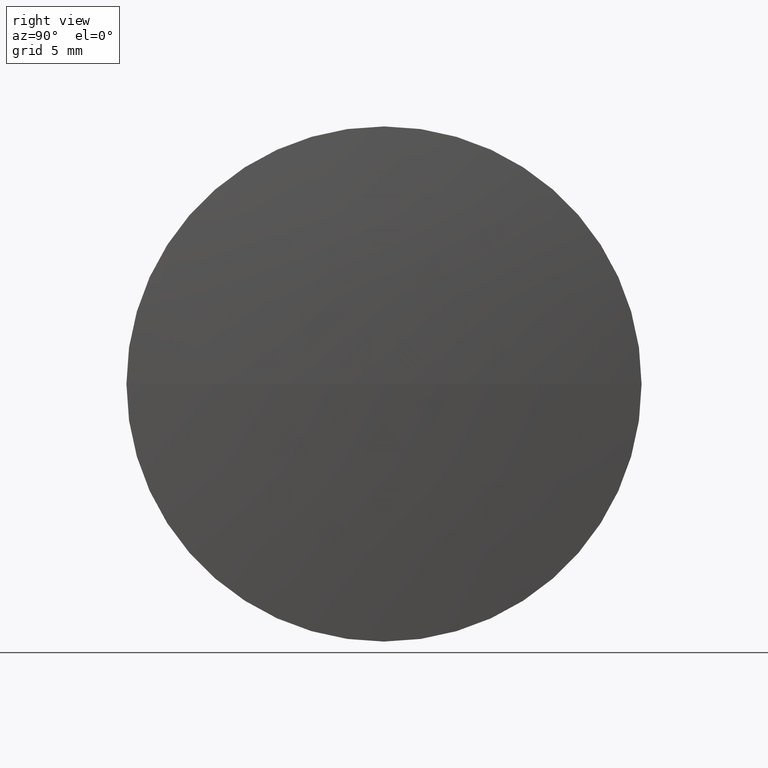
[diagram: clean part render]
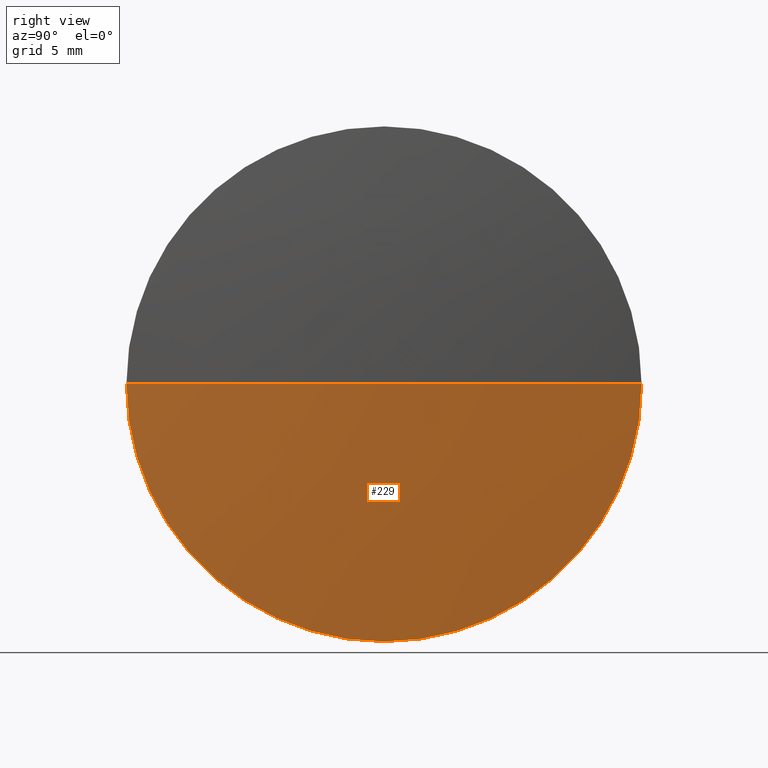
[diagram: same view with one face highlighted and labeled with its STEP entity id]
A machine part, right view. The second image highlights one B-rep face of the part: STEP entity #229.
In plain terms, the highlighted spherical surface has radius 134.671 mm.
Its self-contained STEP definition (entity closure, byte-faithful):
#4 = DIRECTION ( 'NONE',  ( -1.000000000000000000, -0.0000000000000000000, -0.0000000000000000000 ) ) ;
#10 = EDGE_CURVE ( 'NONE', #160, #180, #226, .T. ) ;
#29 = DIRECTION ( 'NONE',  ( 0.0000000000000000000, -1.000000000000000000, -1.224646799147353000E-016 ) ) ;
#33 = CARTESIAN_POINT ( 'NONE',  ( 87.45786520323396500, 48.61611302318478100, -12.69999999999999600 ) ) ;
#39 = AXIS2_PLACEMENT_3D ( 'NONE', #225, #194, #29 ) ;
#52 = ORIENTED_EDGE ( 'NONE', *, *, #283, .F. ) ;
#64 = CARTESIAN_POINT ( 'NONE',  ( 87.45786520323397900, 61.31611302318493300, 1.555301434917144000E-015 ) ) ;
#73 = ORIENTED_EDGE ( 'NONE', *, *, #10, .F. ) ;
#75 = SPHERICAL_SURFACE ( 'NONE', #274, 134.6713041388842400 ) ;
#78 = DIRECTION ( 'NONE',  ( 0.0000000000000000000, 0.0000000000000000000, 1.000000000000000000 ) ) ;
#80 = DIRECTION ( 'NONE',  ( -1.000000000000000000, -0.0000000000000000000, -0.0000000000000000000 ) ) ;
#88 = CARTESIAN_POINT ( 'NONE',  ( 87.45786520323396500, 48.61611302318478100, 0.0000000000000000000 ) ) ;
#92 = CARTESIAN_POINT ( 'NONE',  ( -46.61327322136452300, 48.61611302318488700, 0.0000000000000000000 ) ) ;
#103 = EDGE_CURVE ( 'NONE', #299, #315, #241, .T. ) ;
#111 = DIRECTION ( 'NONE',  ( 0.0000000000000000000, 0.0000000000000000000, 1.000000000000000000 ) ) ;
#118 = EDGE_CURVE ( 'NONE', #299, #160, #148, .T. ) ;
#134 = AXIS2_PLACEMENT_3D ( 'NONE', #300, #80, #78 ) ;
#139 = CARTESIAN_POINT ( 'NONE',  ( 88.05803091751970200, 48.61611302318488000, 0.0000000000000000000 ) ) ;
#143 = ORIENTED_EDGE ( 'NONE', *, *, #103, .T. ) ;
#148 = CIRCLE ( 'NONE', #39, 134.6713041388842400 ) ;
#149 = ORIENTED_EDGE ( 'NONE', *, *, #118, .F. ) ;
#160 = VERTEX_POINT ( 'NONE', #64 ) ;
#161 = AXIS2_PLACEMENT_3D ( 'NONE', #88, #4, #193 ) ;
#180 = VERTEX_POINT ( 'NONE', #33 ) ;
#193 = DIRECTION ( 'NONE',  ( 0.0000000000000000000, 0.0000000000000000000, 1.000000000000000000 ) ) ;
#194 = DIRECTION ( 'NONE',  ( 0.0000000000000000000, -1.224646799147353200E-016, 1.000000000000000000 ) ) ;
#223 = CARTESIAN_POINT ( 'NONE',  ( -46.61327322136452300, 48.61611302318488700, 0.0000000000000000000 ) ) ;
#225 = CARTESIAN_POINT ( 'NONE',  ( -46.61327322136452300, 48.61611302318488700, 0.0000000000000000000 ) ) ;
#226 = CIRCLE ( 'NONE', #134, 12.69999999999999600 ) ;
#229 = ADVANCED_FACE ( 'NONE', ( #335 ), #75, .T. ) ;
#241 = CIRCLE ( 'NONE', #332, 134.6713041388842400 ) ;
#249 = DIRECTION ( 'NONE',  ( 0.0000000000000000000, -1.000000000000000000, 0.0000000000000000000 ) ) ;
#267 = EDGE_LOOP ( 'NONE', ( #149, #143, #52, #73 ) ) ;
#274 = AXIS2_PLACEMENT_3D ( 'NONE', #223, #111, #249 ) ;
#281 = CARTESIAN_POINT ( 'NONE',  ( 87.45786520323397900, 35.91611302318473500, 0.0000000000000000000 ) ) ;
#283 = EDGE_CURVE ( 'NONE', #180, #315, #305, .T. ) ;
#299 = VERTEX_POINT ( 'NONE', #139 ) ;
#300 = CARTESIAN_POINT ( 'NONE',  ( 87.45786520323396500, 48.61611302318478100, 0.0000000000000000000 ) ) ;
#305 = CIRCLE ( 'NONE', #161, 12.69999999999999600 ) ;
#306 = DIRECTION ( 'NONE',  ( 0.0000000000000000000, 0.0000000000000000000, -1.000000000000000000 ) ) ;
#315 = VERTEX_POINT ( 'NONE', #281 ) ;
#326 = DIRECTION ( 'NONE',  ( -1.000000000000000000, 0.0000000000000000000, 0.0000000000000000000 ) ) ;
#332 = AXIS2_PLACEMENT_3D ( 'NONE', #92, #306, #326 ) ;
#335 = FACE_OUTER_BOUND ( 'NONE', #267, .T. ) ;